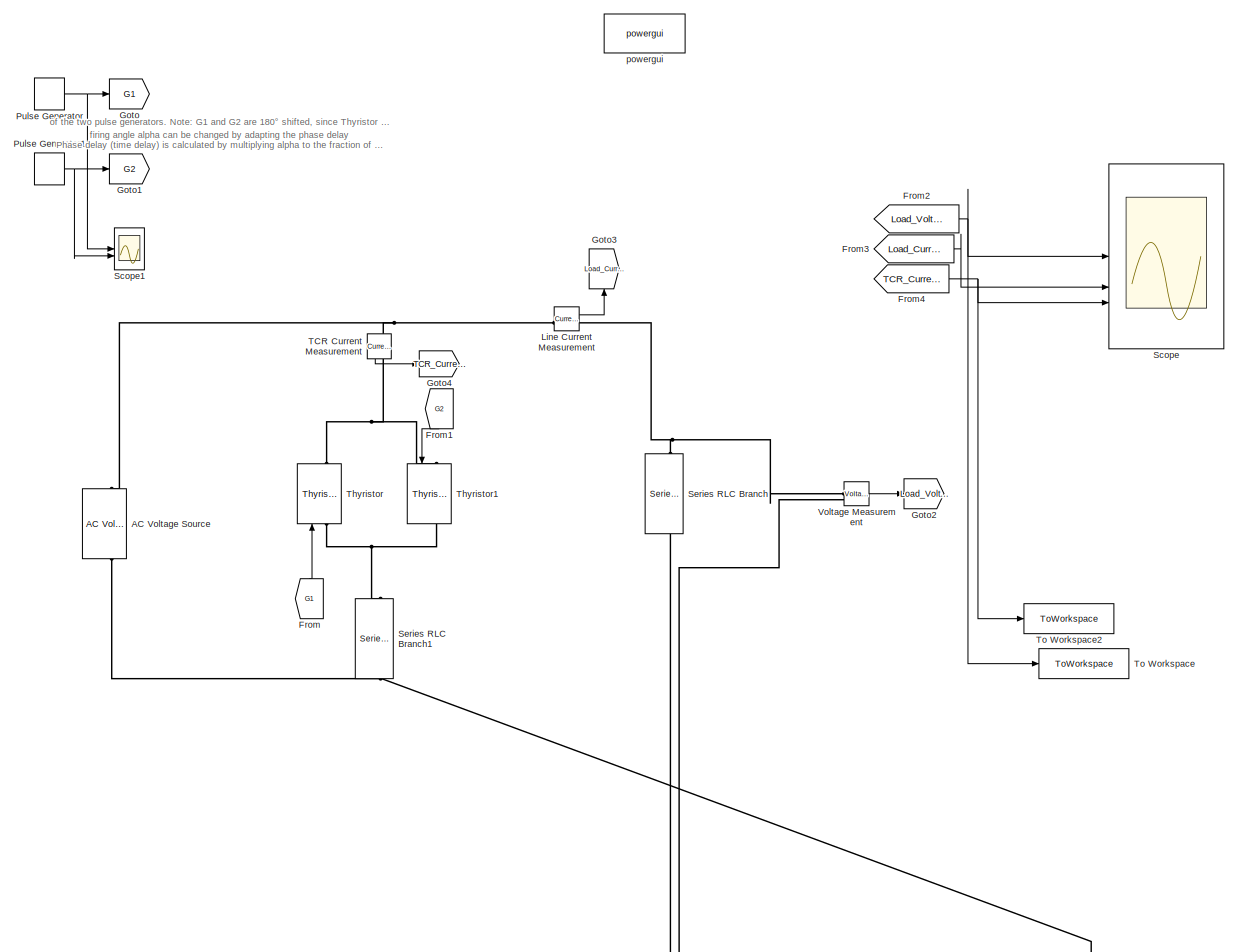
[diagram: root canvas - part 1/1, most of the canvas]
MODEL slx_2eb95e54c099
KIND model
CONFIG AbsTol = auto
CONFIG EnableMultiTasking = off
CONFIG FixedStep = auto
CONFIG MaxStep = 1e-5
CONFIG MinStep = auto
CONFIG RelTol = 1e-3
CONFIG SampleTimeConstraint = Unconstrained
CONFIG SolverName = VariableStepAuto
CONFIG StartTime = 0.0
CONFIG StopTime = 0.1
BLOCK [Reference] AC Voltage Source  REF=spsACVoltageSourceLib/AC Voltage Source
  LibrarySourceBlock = sps_lib/Sources/AC Voltage Source
  SourceBlock = spsACVoltageSourceLib/AC Voltage Source
  SourceType = AC Voltage Source
BLOCK [From] From
  GotoTag = G1
  NameLocation = right
BLOCK [From] From1
  GotoTag = G2
  NameLocation = left
BLOCK [From] From2
  GotoTag = Load_Voltage
  IconDisplay = Signal name
BLOCK [From] From3
  GotoTag = Load_Current
BLOCK [From] From4
  GotoTag = TCR_Current
BLOCK [Goto] Goto
  GotoTag = G1
BLOCK [Goto] Goto1
  GotoTag = G2
BLOCK [Goto] Goto2
  GotoTag = Load_Voltage
BLOCK [Goto] Goto3
  GotoTag = Load_Current
  NameLocation = right
BLOCK [Goto] Goto4
  GotoTag = TCR_Current
BLOCK [Reference] Line Current Measurement  REF=spsCurrentMeasurementLib/Current Measurement
  LibrarySourceBlock = sps_lib/Sensors and Measurements/Current Measurement
  SourceBlock = spsCurrentMeasurementLib/Current Measurement
  SourceType = Current Measurement
  UserDataPersistent = on
BLOCK [DiscretePulseGenerator] Pulse Generator
  Period = 1/50
  PhaseDelay = (1/50)*((180+a)/360)
  PulseType = Time based
  PulseWidth = 5
BLOCK [DiscretePulseGenerator] Pulse Generator1
  Period = 1/50
  PhaseDelay = (1/50)*(a/360)
  PulseType = Time based
  PulseWidth = 5
BLOCK [Scope] Scope
  Floating = off
  NumInputPorts = 4
  ScopeSpecificationString = Simulink.scopes.TimeScopeBlockCfg('CurrentConfiguration', extmgr.ConfigurationSet(extmgr.Configuration('Core','General UI',true,'FigureColor',[1 1 1]),extmgr.Configuration('Core','Source UI',true),extmgr.Configuration('Sources','WiredSimulink',true),extmgr.Configuration('Visuals','Time Domain',true,'SerializedDisplays',{struct('MinYLimReal','-176.77654','MaxYLimReal','176.77665','YLabelReal','','M...<+2591ch>
BLOCK [Scope] Scope1
  Floating = off
  NumInputPorts = 2
  ScopeSpecificationString = Simulink.scopes.TimeScopeBlockCfg('CurrentConfiguration', extmgr.ConfigurationSet(extmgr.Configuration('Core','General UI',true),extmgr.Configuration('Core','Source UI',true),extmgr.Configuration('Sources','WiredSimulink',true,'DataLoggingVariableName','ScopeData1'),extmgr.Configuration('Visuals','Time Domain',true,'SerializedDisplays',{struct('MinYLimReal','-0.125','MaxYLimReal','1.125','YLabelRe...<+1516ch>
BLOCK [Reference] Series RLC Branch  REF=spsSeriesRLCBranchLib/Series RLC Branch
  LibrarySourceBlock = sps_lib/Passives/Series RLC Branch
  NameLocation = left
  SourceBlock = spsSeriesRLCBranchLib/Series RLC Branch
  SourceType = Series RLC Branch
BLOCK [Reference] Series RLC Branch1  REF=spsSeriesRLCBranchLib/Series RLC Branch
  LibrarySourceBlock = sps_lib/Passives/Series RLC Branch
  NameLocation = left
  SourceBlock = spsSeriesRLCBranchLib/Series RLC Branch
  SourceType = Series RLC Branch
BLOCK [Reference] TCR Current Measurement  REF=spsCurrentMeasurementLib/Current Measurement
  LibrarySourceBlock = sps_lib/Sensors and Measurements/Current Measurement
  NameLocation = left
  SourceBlock = spsCurrentMeasurementLib/Current Measurement
  SourceType = Current Measurement
  UserDataPersistent = on
BLOCK [Reference] Thyristor  REF=spsThyristorLib/Thyristor
  LibrarySourceBlock = sps_lib/Power Electronics/Thyristor
  NameLocation = right
  SourceBlock = spsThyristorLib/Thyristor
  SourceType = Thyristor
BLOCK [Reference] Thyristor1  REF=spsThyristorLib/Thyristor
  LibrarySourceBlock = sps_lib/Power Electronics/Thyristor
  NameLocation = left
  SourceBlock = spsThyristorLib/Thyristor
  SourceType = Thyristor
BLOCK [ToWorkspace] To Workspace
  FixptAsFi = on
  MaxDataPoints = inf
  SampleTime = -1
  SaveFormat = Timeseries
  VariableName = Load_Voltage
BLOCK [ToWorkspace] To Workspace2
  FixptAsFi = on
  MaxDataPoints = inf
  SampleTime = -1
  SaveFormat = Timeseries
  VariableName = I_TCR
BLOCK [Reference] Voltage Measurement  REF=spsVoltageMeasurementLib/Voltage Measurement
  LibrarySourceBlock = sps_lib/Sensors and Measurements/Voltage Measurement
  SourceBlock = spsVoltageMeasurementLib/Voltage Measurement
  SourceType = Voltage Measurement
  UserDataPersistent = on
BLOCK [Reference] powergui  REF=sps_lib/powergui
  LibrarySourceBlock = sps_lib/powergui
  Priority = 1
  SourceBlock = sps_lib/powergui
  SourceType = PSB option menu block
ANNOTATION (root): firing angle alpha can be changed by adapting the phase delay of the two pulse generators. Note: G1 and G2 are 180° shifted, since Thyristor 1 and 2 are antiparallel. Phase delay (time delay) is calculated by multiplying alpha to the fraction of the period that corresponds to that angle. (alpha/360)*T=(alpha/360)*(1/50)
LINE From1:1 -> Thyristor1:1
NET From2:1 -> Scope:1, To Workspace:1
LINE From3:1 -> Scope:2
NET From4:1 -> Scope:3, To Workspace2:1
LINE From:1 -> Thyristor:1
LINE Line Current Measurement:1 -> Goto3:1
NET Pulse Generator1:1 -> Goto1:1, Scope1:2
NET Pulse Generator:1 -> Goto:1, Scope1:1
LINE TCR Current Measurement:1 -> Goto4:1
LINE Voltage Measurement:1 -> Goto2:1
PNET net1: AC Voltage Source:LConn1 -- Series RLC Branch1:RConn1 -- Series RLC Branch:RConn1 -- Voltage Measurement:LConn2
PNET net2: AC Voltage Source:RConn1 -- Line Current Measurement:LConn1 -- TCR Current Measurement:LConn1
PNET net3: Line Current Measurement:RConn1 -- Series RLC Branch:LConn1 -- Voltage Measurement:LConn1
PNET net4: Series RLC Branch1:LConn1 -- Thyristor1:RConn1 -- Thyristor:LConn1
PNET net5: TCR Current Measurement:RConn1 -- Thyristor1:LConn1 -- Thyristor:RConn1
note: NET lines group one-source signal fan-out (src -> all destinations, sorted); 1:1 wires keep LINE; PNET lines group multi-terminal physical nets as a canonical sorted terminal list (undirected conserving connections); 2-terminal nets keep the pairwise PLINE form
